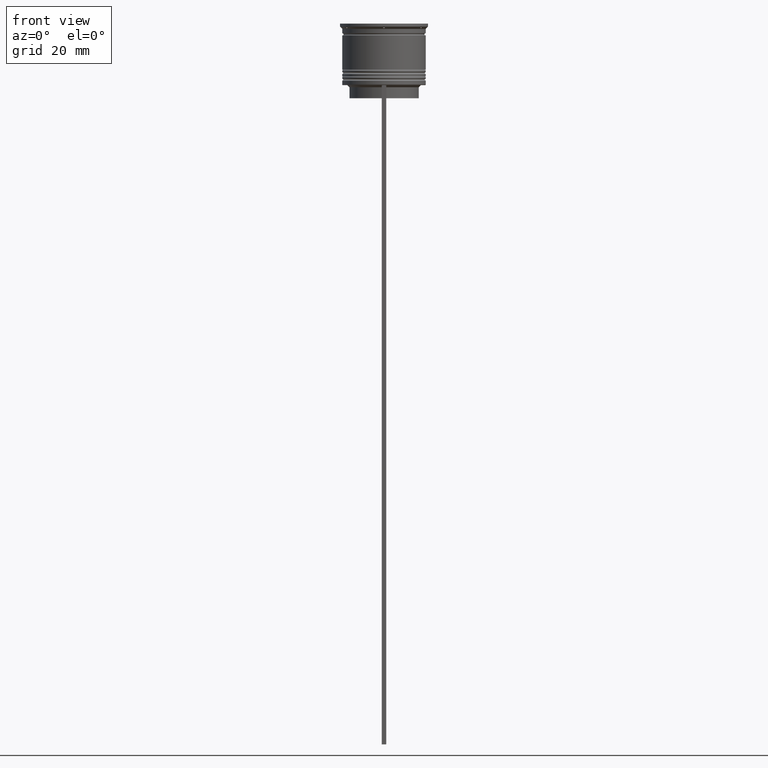
[diagram: clean part render]
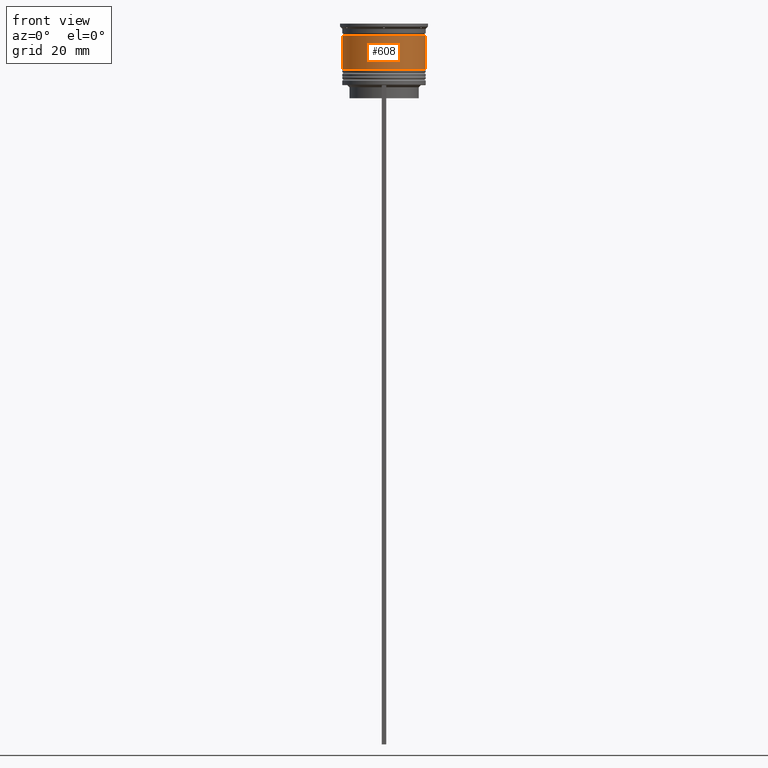
[diagram: same view with one face highlighted and labeled with its STEP entity id]
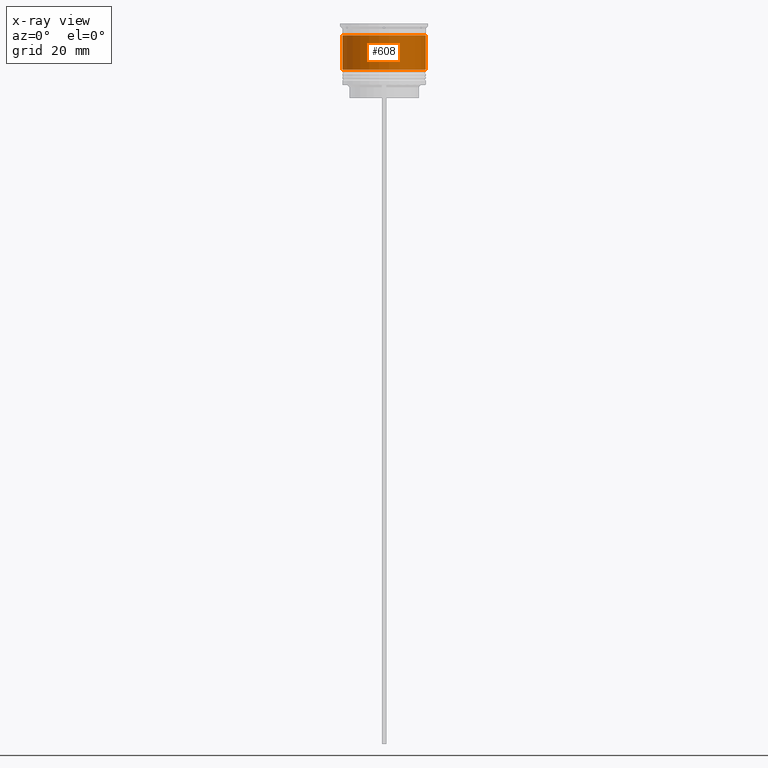
[diagram: x-ray of the same camera — body ghosted, the highlighted face saturated]
A machine part, front view. The second image highlights one B-rep face of the part: STEP entity #608.
The next image is the same camera in x-ray: the body ghosted, the highlighted face saturated — about 0% of this face is hidden behind the body in this view.
In plain terms, the highlighted cylindrical surface (partial cylindrical patch) has radius 9.5 mm, axis along (-0, -0, 1).
Its self-contained STEP definition (entity closure, byte-faithful):
#204 = DIRECTION ( 'NONE',  ( -0.000000000000000000, -0.000000000000000000, 1.000000000000000000 ) ) ;
#237 = VECTOR ( 'NONE', #1963, 1000.000000000000000 ) ;
#293 = DIRECTION ( 'NONE',  ( 1.000000000000000000, 0.000000000000000000, 0.000000000000000000 ) ) ;
#372 = AXIS2_PLACEMENT_3D ( 'NONE', #2297, #2148, #293 ) ;
#519 = CARTESIAN_POINT ( 'NONE',  ( 9.500000000000001776, 0.000000000000000000, -10.50000000000000000 ) ) ;
#584 = CARTESIAN_POINT ( 'NONE',  ( -9.499999999999998224, 1.163414459189985485E-15, -2.700000000000001066 ) ) ;
#608 = ADVANCED_FACE ( 'NONE', ( #834 ), #2260, .T. ) ;
#685 = LINE ( 'NONE', #1504, #2622 ) ;
#691 = EDGE_CURVE ( 'NONE', #2261, #2077, #1836, .T. ) ;
#699 = CARTESIAN_POINT ( 'NONE',  ( 9.499999999999998224, 0.000000000000000000, -2.700000000000001066 ) ) ;
#722 = AXIS2_PLACEMENT_3D ( 'NONE', #2456, #1218, #2273 ) ;
#797 = ORIENTED_EDGE ( 'NONE', *, *, #691, .T. ) ;
#834 = FACE_OUTER_BOUND ( 'NONE', #1038, .T. ) ;
#851 = CIRCLE ( 'NONE', #372, 9.499999999999998224 ) ;
#856 = CARTESIAN_POINT ( 'NONE',  ( -9.500000000000001776, 1.163414459189985682E-15, -10.50000000000000000 ) ) ;
#908 = VERTEX_POINT ( 'NONE', #584 ) ;
#928 = EDGE_CURVE ( 'NONE', #2261, #908, #1167, .T. ) ;
#1017 = CARTESIAN_POINT ( 'NONE',  ( 0.000000000000000000, 0.000000000000000000, 0.000000000000000000 ) ) ;
#1038 = EDGE_LOOP ( 'NONE', ( #2223, #797, #1969, #2627 ) ) ;
#1132 = EDGE_CURVE ( 'NONE', #908, #1813, #851, .T. ) ;
#1137 = CARTESIAN_POINT ( 'NONE',  ( -9.500000000000000000, 1.163414459189985485E-15, 0.000000000000000000 ) ) ;
#1167 = LINE ( 'NONE', #1137, #237 ) ;
#1218 = DIRECTION ( 'NONE',  ( -0.000000000000000000, -0.000000000000000000, 1.000000000000000000 ) ) ;
#1504 = CARTESIAN_POINT ( 'NONE',  ( 9.500000000000000000, 0.000000000000000000, 0.000000000000000000 ) ) ;
#1751 = AXIS2_PLACEMENT_3D ( 'NONE', #1017, #204, #1879 ) ;
#1813 = VERTEX_POINT ( 'NONE', #699 ) ;
#1836 = CIRCLE ( 'NONE', #722, 9.500000000000001776 ) ;
#1879 = DIRECTION ( 'NONE',  ( 1.000000000000000000, 0.000000000000000000, 0.000000000000000000 ) ) ;
#1925 = EDGE_CURVE ( 'NONE', #2077, #1813, #685, .T. ) ;
#1963 = DIRECTION ( 'NONE',  ( -0.000000000000000000, -0.000000000000000000, 1.000000000000000000 ) ) ;
#1969 = ORIENTED_EDGE ( 'NONE', *, *, #1925, .T. ) ;
#2077 = VERTEX_POINT ( 'NONE', #519 ) ;
#2148 = DIRECTION ( 'NONE',  ( -0.000000000000000000, -0.000000000000000000, 1.000000000000000000 ) ) ;
#2223 = ORIENTED_EDGE ( 'NONE', *, *, #928, .F. ) ;
#2260 = CYLINDRICAL_SURFACE ( 'NONE', #1751, 9.500000000000000000 ) ;
#2261 = VERTEX_POINT ( 'NONE', #856 ) ;
#2273 = DIRECTION ( 'NONE',  ( 1.000000000000000000, 0.000000000000000000, 0.000000000000000000 ) ) ;
#2297 = CARTESIAN_POINT ( 'NONE',  ( 0.000000000000000000, 0.000000000000000000, -2.700000000000001066 ) ) ;
#2333 = DIRECTION ( 'NONE',  ( -0.000000000000000000, -0.000000000000000000, 1.000000000000000000 ) ) ;
#2456 = CARTESIAN_POINT ( 'NONE',  ( 0.000000000000000000, 0.000000000000000000, -10.50000000000000000 ) ) ;
#2622 = VECTOR ( 'NONE', #2333, 1000.000000000000000 ) ;
#2627 = ORIENTED_EDGE ( 'NONE', *, *, #1132, .F. ) ;